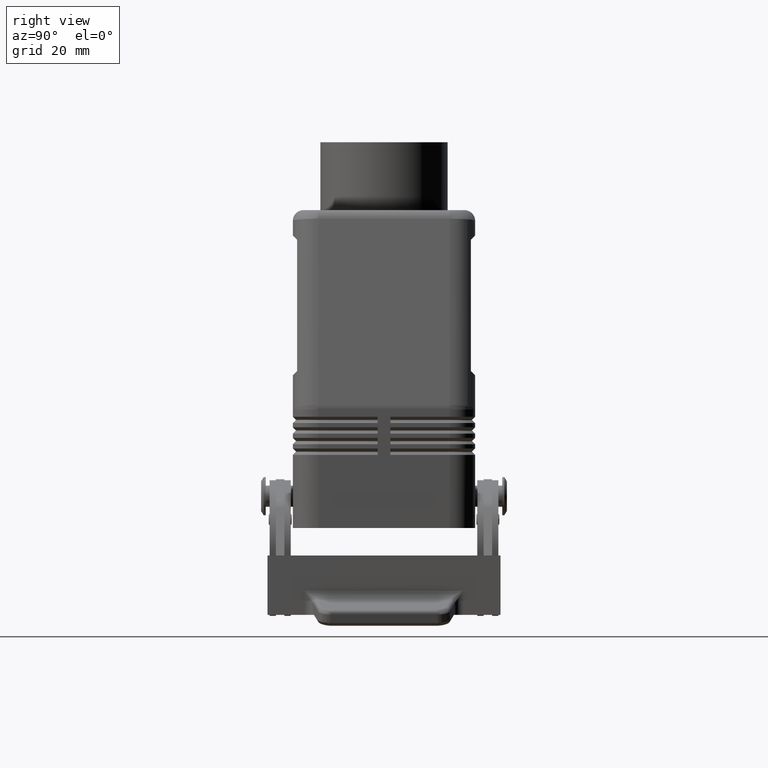
[diagram: clean part render]
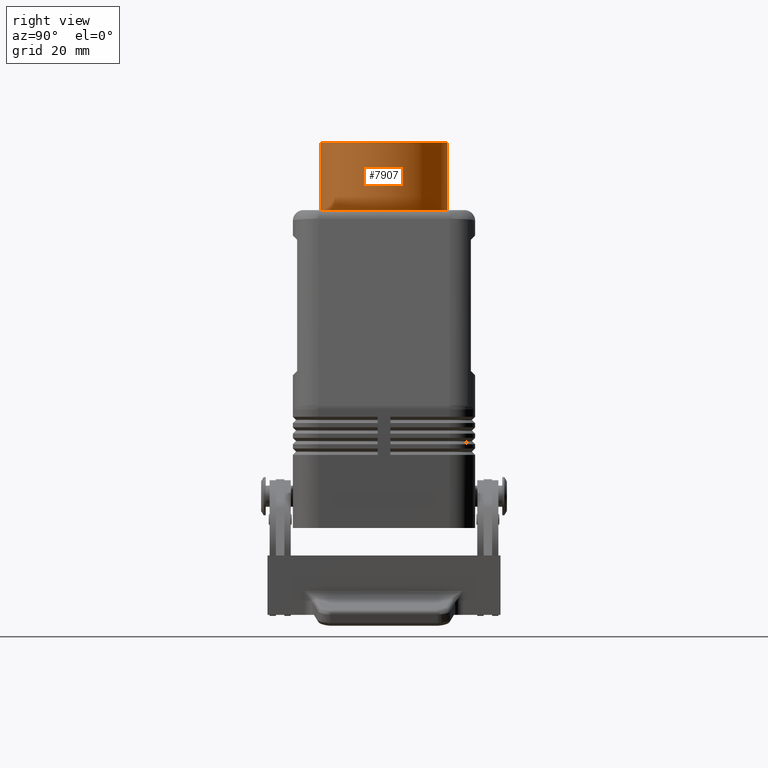
[diagram: same view with one face highlighted and labeled with its STEP entity id]
A machine part, right view. The second image highlights one B-rep face of the part: STEP entity #7907.
In plain terms, the highlighted cylindrical surface (partial cylindrical patch) has radius 15 mm, axis along (0, 0, -1).
Its self-contained STEP definition (entity closure, byte-faithful):
#7866=CARTESIAN_POINT('',(0.0,-1.148398E-014,80.500000000000000));
#7867=DIRECTION('',(0.0,2.835550E-016,-1.0));
#7868=DIRECTION('',(0.0,1.0,0.0));
#7869=AXIS2_PLACEMENT_3D('',#7866,#7867,#7868);
#7870=CYLINDRICAL_SURFACE('',#7869,15.000000000000004);
#7871=CARTESIAN_POINT('',(0.0,14.999999999999991,91.0));
#7872=VERTEX_POINT('',#7871);
#7873=CARTESIAN_POINT('',(-1.836910E-015,14.999999999999993,75.0));
#7874=VERTEX_POINT('',#7873);
#7875=CARTESIAN_POINT('',(0.0,14.999999999999991,91.0));
#7876=DIRECTION('',(0.0,0.0,-1.0));
#7877=VECTOR('',#7876,16.0);
#7878=LINE('',#7875,#7877);
#7879=EDGE_CURVE('',#7872,#7874,#7878,.T.);
#7880=ORIENTED_EDGE('',*,*,#7879,.F.);
#7881=CARTESIAN_POINT('',(1.836910E-015,-15.000000000000021,91.0));
#7882=VERTEX_POINT('',#7881);
#7883=CARTESIAN_POINT('',(0.0,-1.446131E-014,91.0));
#7884=DIRECTION('',(0.0,0.0,-1.0));
#7885=DIRECTION('',(0.0,1.0,0.0));
#7886=AXIS2_PLACEMENT_3D('',#7883,#7884,#7885);
#7887=CIRCLE('',#7886,15.000000000000007);
#7888=EDGE_CURVE('',#7872,#7882,#7887,.T.);
#7889=ORIENTED_EDGE('',*,*,#7888,.T.);
#7890=CARTESIAN_POINT('',(-1.836910E-015,-15.000000000000014,74.999999999999986));
#7891=VERTEX_POINT('',#7890);
#7892=CARTESIAN_POINT('',(-1.836910E-015,-15.000000000000014,74.999999999999986));
#7893=DIRECTION('',(0.0,0.0,1.0));
#7894=VECTOR('',#7893,16.000000000000014);
#7895=LINE('',#7892,#7894);
#7896=EDGE_CURVE('',#7891,#7882,#7895,.T.);
#7897=ORIENTED_EDGE('',*,*,#7896,.F.);
#7898=CARTESIAN_POINT('',(0.0,-9.924425E-015,74.999999999999986));
#7899=DIRECTION('',(0.0,0.0,-1.0));
#7900=DIRECTION('',(0.0,1.0,0.0));
#7901=AXIS2_PLACEMENT_3D('',#7898,#7899,#7900);
#7902=CIRCLE('',#7901,15.000000000000004);
#7903=EDGE_CURVE('',#7874,#7891,#7902,.T.);
#7904=ORIENTED_EDGE('',*,*,#7903,.F.);
#7905=EDGE_LOOP('',(#7880,#7889,#7897,#7904));
#7906=FACE_OUTER_BOUND('',#7905,.T.);
#7907=ADVANCED_FACE('',(#7906),#7870,.T.);